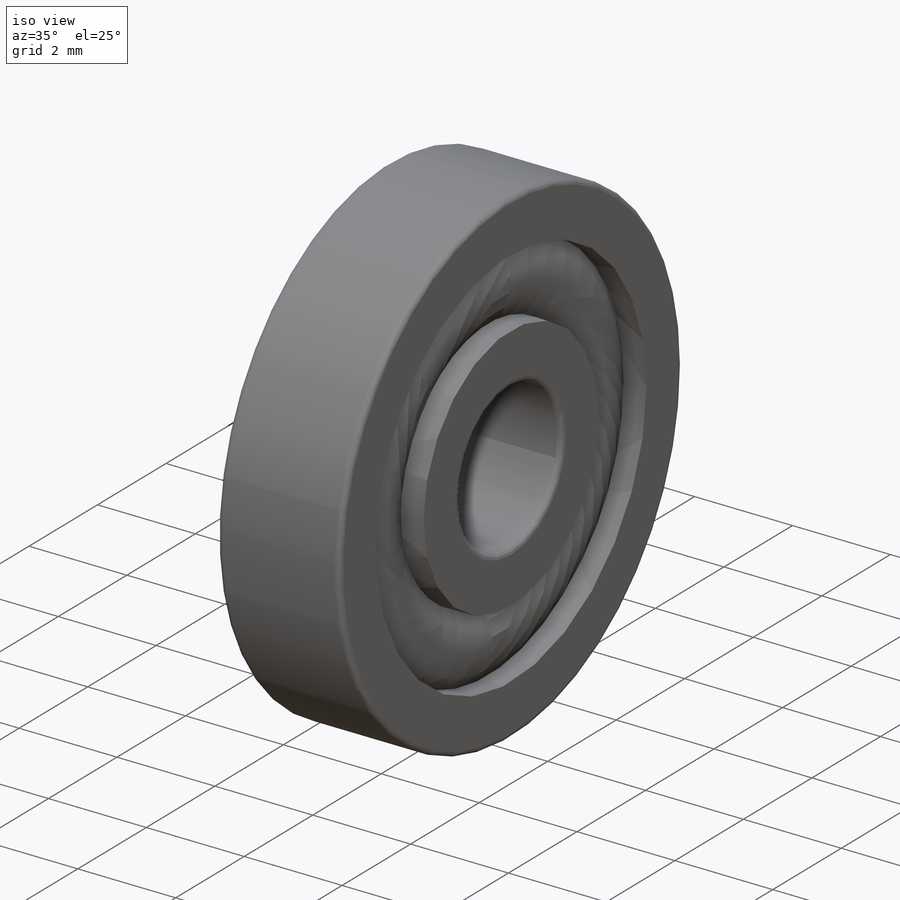
[diagram: iso view]
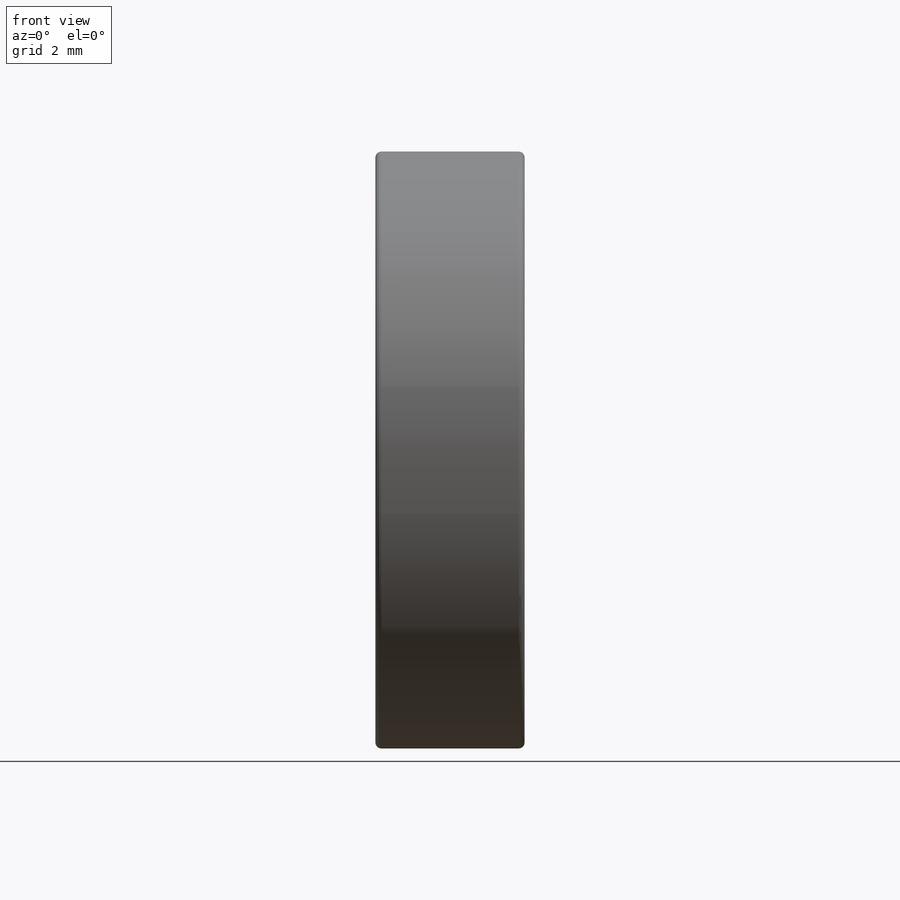
[diagram: front view]
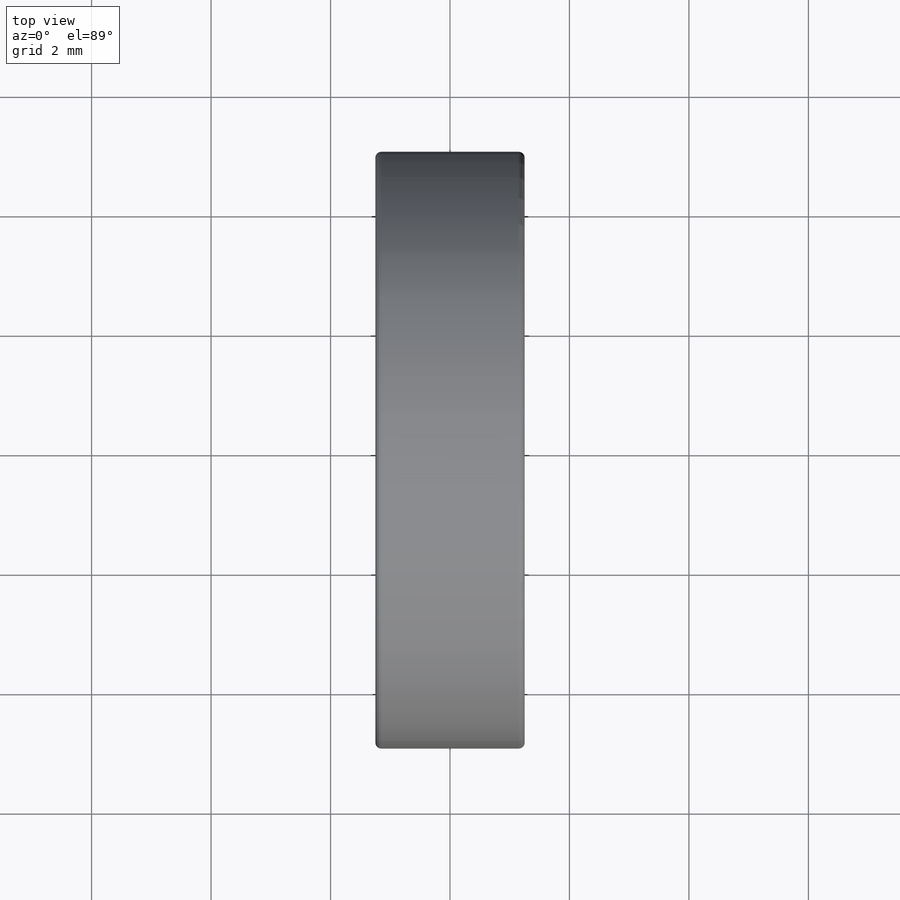
[diagram: top view]
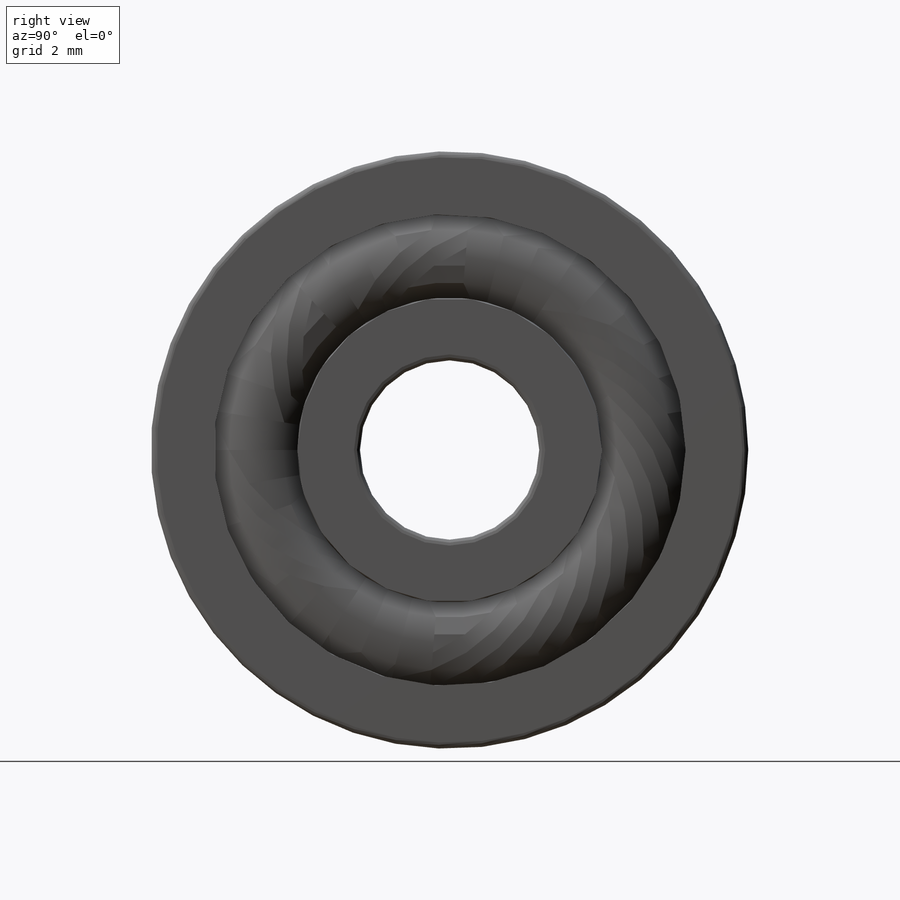
[diagram: right view]
SOLIDWORKS PART (.sldprt)
format: sldprt  version: not decoded by parser v0  size: 1,496,064 bytes
history: native  units: mm
features: sketch x9, plane x3, revolve x2, pattern_circular x2, cut_revolve x2, material x1 (+9 scaffold rows collapsed)
feature tree (28):
  scaffold x9  (default folders/planes/origin — collapsed)
  material  "Matériau <non spécifié>"
  plane  "Plane1"
  plane  "Plane2"
  plane  "Plane3"
  sketch  "Clipboard"  dims[c1.BallCLRad=22.225mm c2.BallCLRad=3.25mm c2.D2=20.0mm c2.Count=2.0deg c2.D3=~22.36068mm c2.Show_count=2.0deg c2.D1=20.0mm c2.Max_count=2.0deg c3.D1=20.0mm c3.Min_count=1.0deg]
  sketch  "CagSpiSke"  dims[Thickness=0.21mm OD=6.85mm ID=6.15mm]
  revolve  "CageSpine"  Angle=0.001deg
  sketch  "CagBalSke"  dims[CageWallOD=2.31mm BallCLRad=3.25mm D1=360.0deg]
  pattern_circular  "CageBalls"  Count=2 Angle=180deg
  sketch  "CagTrmODSke"  dims[Width=2.312mm ID=6.85mm OD=8.812mm]
  cut_revolve  "CageTrimOD"  Angle=360deg
  sketch  "CagTrmIDSke"  dims[ID=4.192mm OD=6.15mm Width=2.312mm]
  revolve  "CageTrimID"  Angle=360deg
  sketch  "BalSimSke"  dims[Ball_diameter=2.1mm BallCLRad=3.25mm D1=360.0deg]
  sketch  "BalDetSke"  dims[Ball_diameter=2.1mm BallCLRad=3.25mm D1=360.0deg]
  sketch  "InnRacSke"  dims[Fillet_radius=0.1mm Ball_diameter=2.05mm ID=3.0mm OD=5.1mm Width=2.5mm BallCLRad=3.25mm D1=360.0deg]
  sketch  "OutRacSke"  dims[Fillet_radius=0.1mm Ball_diameter=2.05mm OD=10.0mm ID=7.9mm Width=2.5mm BallCLRad=3.25mm D1=360.0deg Count=0.0mm Angle=180.0deg SubType=255.0]
  pattern_circular  "CimBearingSettings6.028918"  Count=255 LOCATION_METHOD=255  [1 undecoded]
  cut_revolve  "CimBearingSettings6.0"  LOCATION_METHOD=255  [1 undecoded]
decode coverage: 15 of 15 modeling features carry decoded parameters
note: ~ marks probable driven/reference dimensions
note: 2 parameter values undecoded
note: suppression state not decoded; provenance and decode notes live in map.json
